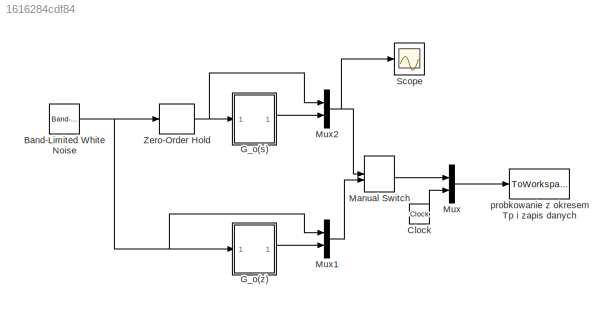
MODEL mdl_1616284cdf84
KIND model
CONFIG AbsTol = auto
CONFIG EnableMultiTasking = on
CONFIG FixedStep = auto
CONFIG MaxStep = 0.01
CONFIG MinStep = auto
CONFIG RelTol = 1e-3
CONFIG SampleTimeConstraint = Unconstrained
CONFIG SolverName = ode45
CONFIG StartTime = 0.0
CONFIG StopTime = tend
BLOCK [Reference] Band-Limited White Noise  REF=simulink/Sources/Band-Limited
White Noise
  SourceBlock = simulink/Sources/Band-Limited\nWhite Noise
  SourceType = Band-Limited White Noise.
BLOCK [Clock] Clock
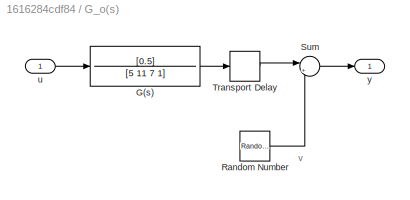
BLOCK [SubSystem] G_o(s)
BLOCK [TransferFcn] G_o(s)/G(s)
  Denominator = [5 11 7 1]
  Numerator = [0.5]
BLOCK [RandomNumber] G_o(s)/Random Number
  SampleTime = Tp*0.1
  Seed = 159
  Variance = sigma2v
BLOCK [Sum] G_o(s)/Sum
  Inputs = |++
BLOCK [TransportDelay] G_o(s)/Transport Delay
  DelayTime = 3
BLOCK [Inport] G_o(s)/u
BLOCK [Outport] G_o(s)/y
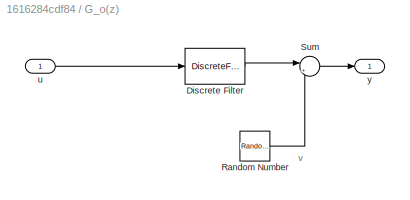
BLOCK [SubSystem] G_o(z)
BLOCK [DiscreteFilter] G_o(z)/Discrete Filter
  Denominator = [1 -0.7]
  InputPortMap = u0
  Numerator = [2]
  SampleTime = Tp
BLOCK [RandomNumber] G_o(z)/Random Number
  SampleTime = Tp
  Seed = 159
  Variance = sigma2v
BLOCK [Sum] G_o(z)/Sum
  Inputs = |++
BLOCK [Inport] G_o(z)/u
BLOCK [Outport] G_o(z)/y
BLOCK [ManualSwitch] Manual Switch
  CurrentSetting = 0
BLOCK [Mux] Mux
  DisplayOption = bar
  Inputs = 2
BLOCK [Mux] Mux1
  DisplayOption = bar
  Inputs = 2
BLOCK [Mux] Mux2
  DisplayOption = bar
  Inputs = 2
BLOCK [Scope] Scope
  Floating = off
  NumInputPorts = 1
  ScopeSpecificationString = Simulink.scopes.TimeScopeBlockCfg('CurrentConfiguration', extmgr.ConfigurationSet(extmgr.Configuration('Core','General UI',true),extmgr.Configuration('Core','Source UI',true),extmgr.Configuration('Sources','WiredSimulink',true),extmgr.Configuration('Visuals','Time Domain',true,'SerializedDisplays',{struct('MinYLimReal','-3.2165','MaxYLimReal','3.456','YLabelReal','','MinYLimMag','0.00000','MaxYLim...<+1365ch>
BLOCK [ZeroOrderHold] Zero-Order Hold
  SampleTime = Tp
BLOCK [ToWorkspace] probkowanie z okresem Tp i zapis danych
  MaxDataPoints = inf
  SampleTime = Tp
  VariableName = Zdata
ANNOTATION G_o(s): v
ANNOTATION G_o(z): v
NET Band-Limited White Noise:1 -> G_o(z):1, Mux1:1, Zero-Order Hold:1
LINE Clock:1 -> Mux:2
LINE G_o(s)/G(s):1 -> G_o(s)/Transport Delay:1
LINE G_o(s)/Random Number:1 -> G_o(s)/Sum:2
LINE G_o(s)/Sum:1 -> G_o(s)/y:1
LINE G_o(s)/Transport Delay:1 -> G_o(s)/Sum:1
LINE G_o(s)/u:1 -> G_o(s)/G(s):1
LINE G_o(s):1 -> Mux2:2
LINE G_o(z)/Discrete Filter:1 -> G_o(z)/Sum:1
LINE G_o(z)/Random Number:1 -> G_o(z)/Sum:2
LINE G_o(z)/Sum:1 -> G_o(z)/y:1
LINE G_o(z)/u:1 -> G_o(z)/Discrete Filter:1
LINE G_o(z):1 -> Mux1:2
LINE Manual Switch:1 -> Mux:1
LINE Mux1:1 -> Manual Switch:2
NET Mux2:1 -> Manual Switch:1, Scope:1
LINE Mux:1 -> probkowanie z okresem Tp i zapis danych:1
NET Zero-Order Hold:1 -> G_o(s):1, Mux2:1
note: NET lines group one-source signal fan-out (src -> all destinations, sorted); 1:1 wires keep LINE
